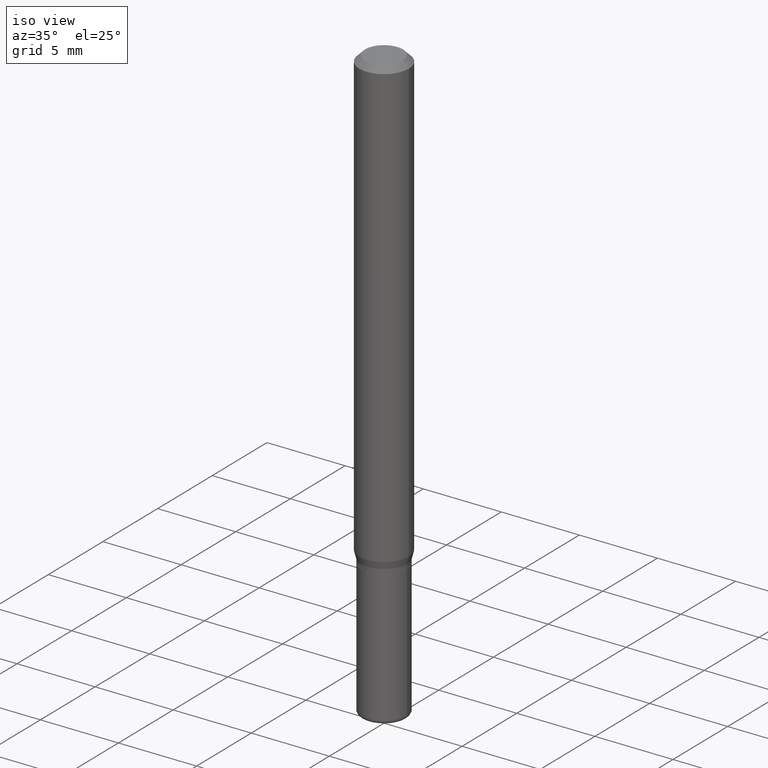
[diagram: clean part render]
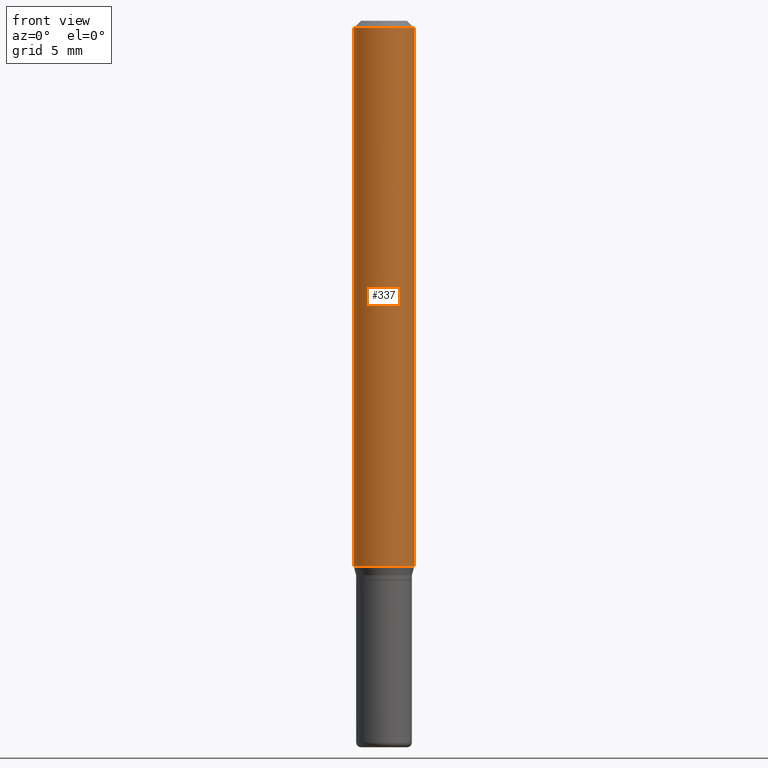
[diagram: tour spotlight — one face highlighted and labeled with its STEP entity id]
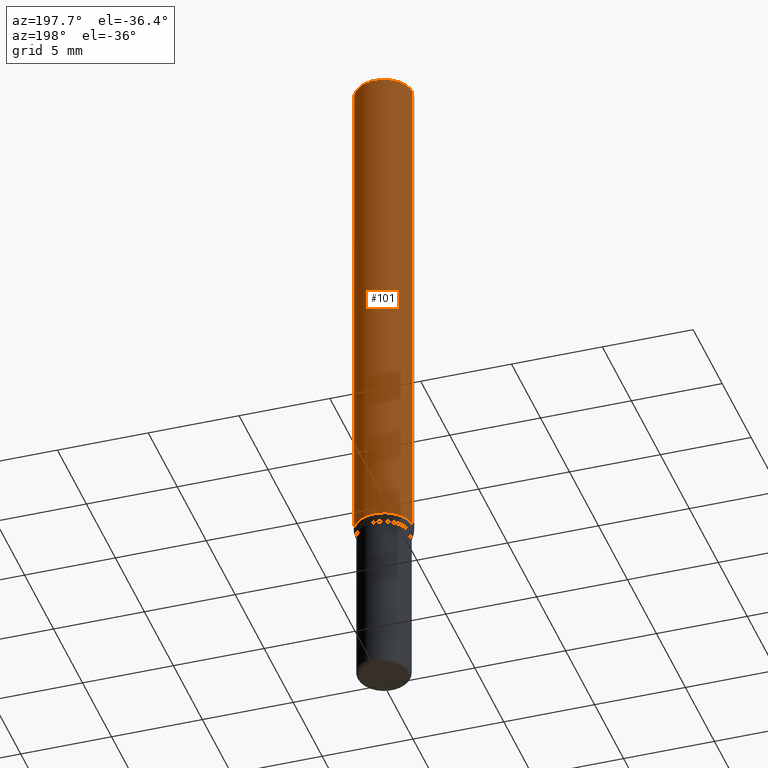
[diagram: tour spotlight — one face highlighted and labeled with its STEP entity id]
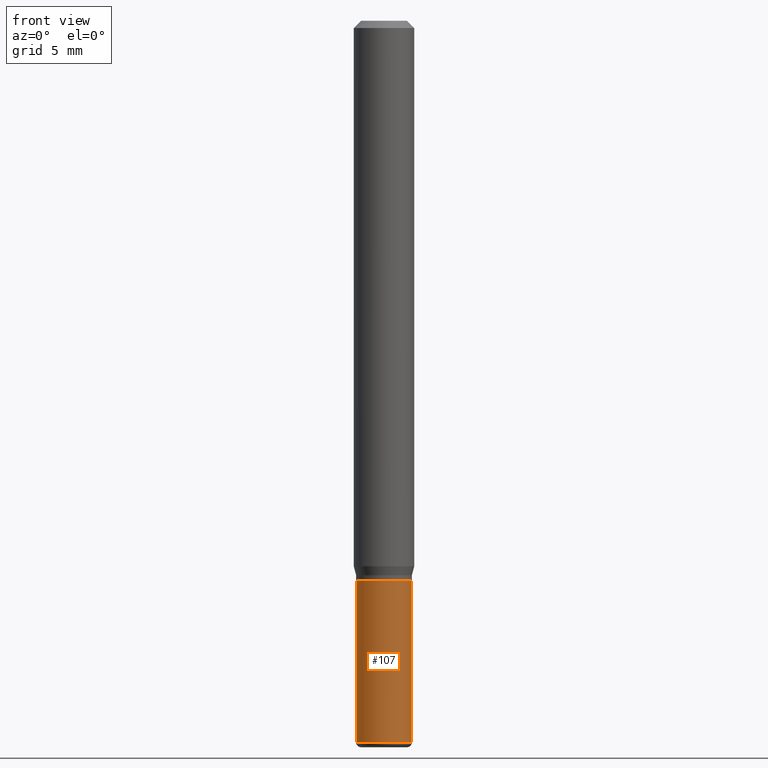
[diagram: tour spotlight — one face highlighted and labeled with its STEP entity id]
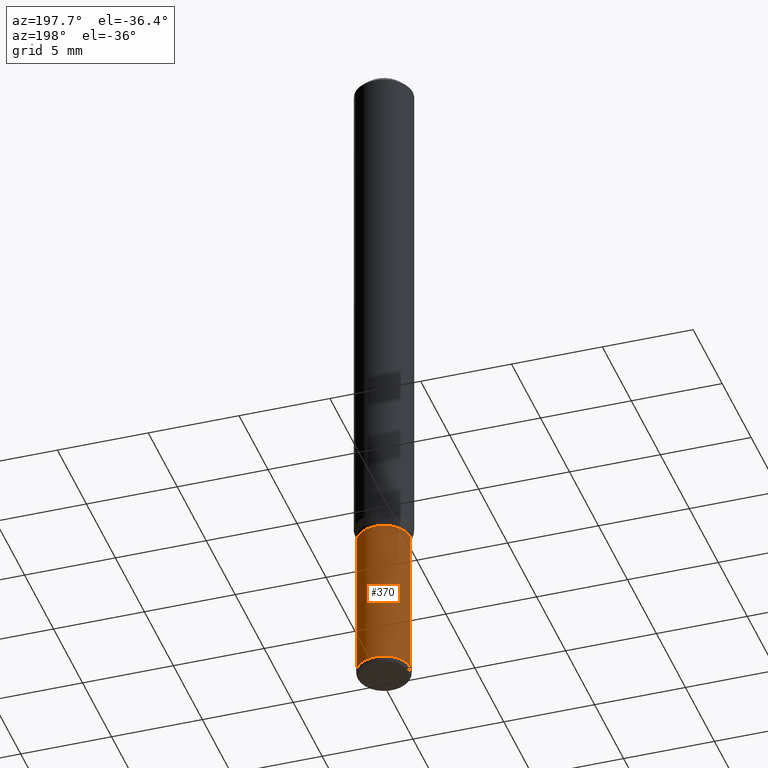
[diagram: tour spotlight — one face highlighted and labeled with its STEP entity id]
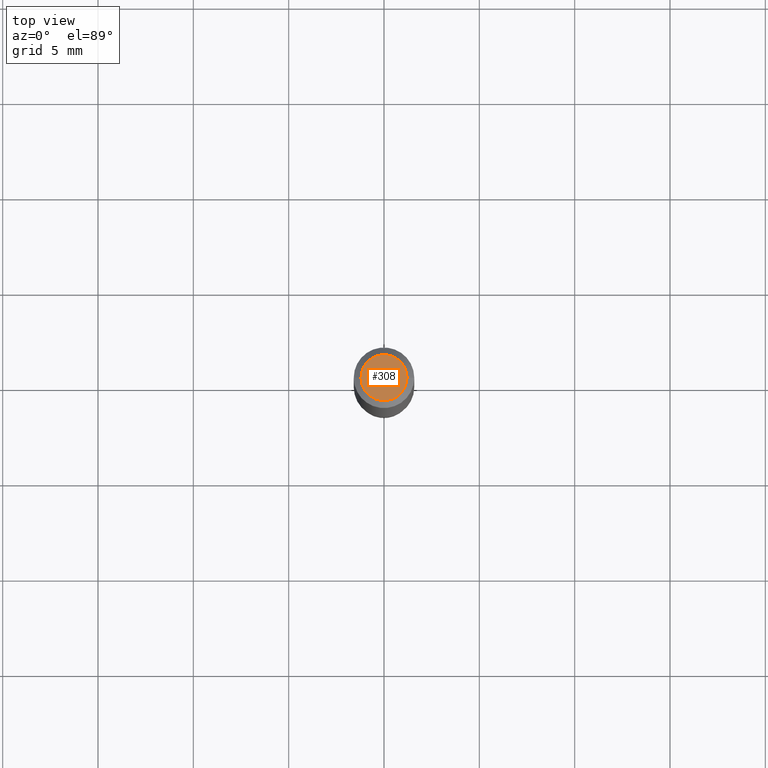
[diagram: tour spotlight — one face highlighted and labeled with its STEP entity id]
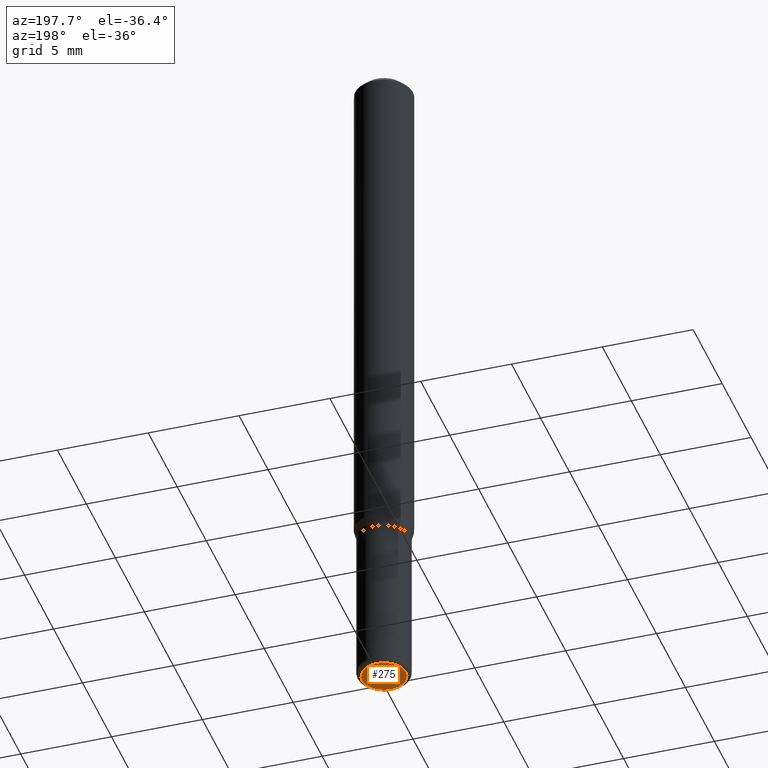
[diagram: tour spotlight — one face highlighted and labeled with its STEP entity id]
A machine part: a face-by-face anatomy tour. The part has 18 B-rep faces; the first image is the clean iso view, then the 6 largest visible faces are spotlighted one at a time (largest first), each with its STEP entity span.

Face 1 — front view, entity #337. In plain terms, the highlighted cylindrical surface (edge-blend (fillet) strip) has radius 1.5875 mm, axis along (-0, 0, 1).
Definition (entity closure, byte-faithful):
#4 = FACE_OUTER_BOUND ( 'NONE', #161, .T. ) ;
#42 = AXIS2_PLACEMENT_3D ( 'NONE', #278, #448, #81 ) ;
#65 = CIRCLE ( 'NONE', #42, 0.06250000000000000000 ) ;
#69 = CARTESIAN_POINT ( 'NONE',  ( 0.06250000000000000000, -4.888073874380378612E-16, -0.01499999999999970281 ) ) ;
#75 = VERTEX_POINT ( 'NONE', #501 ) ;
#81 = DIRECTION ( 'NONE',  ( 1.000000000000000000, -6.982962677686266711E-15, 0.000000000000000000 ) ) ;
#88 = VERTEX_POINT ( 'NONE', #69 ) ;
#90 = EDGE_CURVE ( 'NONE', #75, #321, #303, .T. ) ;
#92 = VECTOR ( 'NONE', #231, 39.37007874015748143 ) ;
#118 = DIRECTION ( 'NONE',  ( -2.445468806185136597E-29, 3.491481338843145583E-15, 1.000000000000000000 ) ) ;
#135 = ORIENTED_EDGE ( 'NONE', *, *, #90, .F. ) ;
#137 = ORIENTED_EDGE ( 'NONE', *, *, #343, .F. ) ;
#148 = CARTESIAN_POINT ( 'NONE',  ( -0.06250000000000000000, 4.440892098500626162E-16, -3.074334431409316114E-30 ) ) ;
#149 = CARTESIAN_POINT ( 'NONE',  ( 0.06250000000000000000, -4.364351673553916694E-16, 3.047610484872459871E-30 ) ) ;
#161 = EDGE_LOOP ( 'NONE', ( #135, #280, #299, #137 ) ) ;
#231 = DIRECTION ( 'NONE',  ( -2.445468806185136877E-29, 3.491481338843145188E-15, 1.000000000000000000 ) ) ;
#234 = AXIS2_PLACEMENT_3D ( 'NONE', #392, #268, #431 ) ;
#268 = DIRECTION ( 'NONE',  ( -2.445468806185136597E-29, 3.491481338843145583E-15, 1.000000000000000000 ) ) ;
#278 = CARTESIAN_POINT ( 'NONE',  ( 3.668203209277632395E-31, -5.237222008264614861E-17, -0.01499999999999970281 ) ) ;
#280 = ORIENTED_EDGE ( 'NONE', *, *, #464, .T. ) ;
#282 = DIRECTION ( 'NONE',  ( 1.000000000000000000, -6.982962677686266711E-15, 4.876176775795935793E-29 ) ) ;
#299 = ORIENTED_EDGE ( 'NONE', *, *, #442, .T. ) ;
#303 = LINE ( 'NONE', #148, #92 ) ;
#307 = LINE ( 'NONE', #149, #482 ) ;
#317 = CYLINDRICAL_SURFACE ( 'NONE', #373, 0.06250000000000000000 ) ;
#319 = VERTEX_POINT ( 'NONE', #323 ) ;
#321 = VERTEX_POINT ( 'NONE', #401 ) ;
#323 = CARTESIAN_POINT ( 'NONE',  ( 0.06250000000000000000, -4.369029371579586711E-15, -1.126339745962155581 ) ) ;
#337 = ADVANCED_FACE ( 'NONE', ( #4 ), #317, .T. ) ;
#343 = EDGE_CURVE ( 'NONE', #321, #88, #65, .T. ) ;
#373 = AXIS2_PLACEMENT_3D ( 'NONE', #480, #118, #282 ) ;
#392 = CARTESIAN_POINT ( 'NONE',  ( 2.754428713916942619E-29, -3.932594204224195830E-15, -1.126339745962155581 ) ) ;
#401 = CARTESIAN_POINT ( 'NONE',  ( -0.06250000000000000000, -1.548394002303358444E-15, -0.01499999999999970281 ) ) ;
#430 = CIRCLE ( 'NONE', #234, 0.06250000000000000000 ) ;
#431 = DIRECTION ( 'NONE',  ( 1.000000000000000000, -6.982962677686270655E-15, 0.000000000000000000 ) ) ;
#442 = EDGE_CURVE ( 'NONE', #319, #88, #307, .T. ) ;
#448 = DIRECTION ( 'NONE',  ( -2.445468806185136597E-29, 3.491481338843145583E-15, 1.000000000000000000 ) ) ;
#464 = EDGE_CURVE ( 'NONE', #75, #319, #430, .T. ) ;
#480 = CARTESIAN_POINT ( 'NONE',  ( 0.000000000000000000, 0.000000000000000000, 0.000000000000000000 ) ) ;
#482 = VECTOR ( 'NONE', #505, 39.37007874015748143 ) ;
#501 = CARTESIAN_POINT ( 'NONE',  ( -0.06250000000000000000, -3.488504994374132819E-15, -1.126339745962155581 ) ) ;
#505 = DIRECTION ( 'NONE',  ( -2.445468806185136877E-29, 3.491481338843145188E-15, 1.000000000000000000 ) ) ;

Face 2 — auxiliary view, entity #101. In plain terms, the highlighted cylindrical surface (edge-blend (fillet) strip) has radius 1.5875 mm, axis along (-0, 0, 1).
Definition (entity closure, byte-faithful):
#64 = EDGE_CURVE ( 'NONE', #319, #75, #403, .T. ) ;
#69 = CARTESIAN_POINT ( 'NONE',  ( 0.06250000000000000000, -4.888073874380378612E-16, -0.01499999999999970281 ) ) ;
#75 = VERTEX_POINT ( 'NONE', #501 ) ;
#88 = VERTEX_POINT ( 'NONE', #69 ) ;
#90 = EDGE_CURVE ( 'NONE', #75, #321, #303, .T. ) ;
#92 = VECTOR ( 'NONE', #231, 39.37007874015748143 ) ;
#101 = ADVANCED_FACE ( 'NONE', ( #271 ), #225, .T. ) ;
#117 = AXIS2_PLACEMENT_3D ( 'NONE', #326, #483, #279 ) ;
#148 = CARTESIAN_POINT ( 'NONE',  ( -0.06250000000000000000, 4.440892098500626162E-16, -3.074334431409316114E-30 ) ) ;
#149 = CARTESIAN_POINT ( 'NONE',  ( 0.06250000000000000000, -4.364351673553916694E-16, 3.047610484872459871E-30 ) ) ;
#185 = CARTESIAN_POINT ( 'NONE',  ( 0.000000000000000000, 0.000000000000000000, 0.000000000000000000 ) ) ;
#194 = DIRECTION ( 'NONE',  ( -2.445468806185136597E-29, 3.491481338843145583E-15, 1.000000000000000000 ) ) ;
#216 = ORIENTED_EDGE ( 'NONE', *, *, #442, .F. ) ;
#225 = CYLINDRICAL_SURFACE ( 'NONE', #242, 0.06250000000000000000 ) ;
#229 = DIRECTION ( 'NONE',  ( 1.000000000000000000, -6.982962677686266711E-15, 4.876176775795935793E-29 ) ) ;
#231 = DIRECTION ( 'NONE',  ( -2.445468806185136877E-29, 3.491481338843145188E-15, 1.000000000000000000 ) ) ;
#242 = AXIS2_PLACEMENT_3D ( 'NONE', #185, #342, #229 ) ;
#248 = EDGE_CURVE ( 'NONE', #88, #321, #450, .T. ) ;
#271 = FACE_OUTER_BOUND ( 'NONE', #359, .T. ) ;
#279 = DIRECTION ( 'NONE',  ( 1.000000000000000000, -6.982962677686266711E-15, 0.000000000000000000 ) ) ;
#303 = LINE ( 'NONE', #148, #92 ) ;
#307 = LINE ( 'NONE', #149, #482 ) ;
#311 = CARTESIAN_POINT ( 'NONE',  ( 2.754428713916942619E-29, -3.932594204224195830E-15, -1.126339745962155581 ) ) ;
#319 = VERTEX_POINT ( 'NONE', #323 ) ;
#321 = VERTEX_POINT ( 'NONE', #401 ) ;
#323 = CARTESIAN_POINT ( 'NONE',  ( 0.06250000000000000000, -4.369029371579586711E-15, -1.126339745962155581 ) ) ;
#326 = CARTESIAN_POINT ( 'NONE',  ( 3.668203209277632395E-31, -5.237222008264614861E-17, -0.01499999999999970281 ) ) ;
#330 = ORIENTED_EDGE ( 'NONE', *, *, #248, .F. ) ;
#342 = DIRECTION ( 'NONE',  ( -2.445468806185136597E-29, 3.491481338843145583E-15, 1.000000000000000000 ) ) ;
#359 = EDGE_LOOP ( 'NONE', ( #487, #490, #330, #216 ) ) ;
#401 = CARTESIAN_POINT ( 'NONE',  ( -0.06250000000000000000, -1.548394002303358444E-15, -0.01499999999999970281 ) ) ;
#403 = CIRCLE ( 'NONE', #495, 0.06250000000000000000 ) ;
#442 = EDGE_CURVE ( 'NONE', #319, #88, #307, .T. ) ;
#450 = CIRCLE ( 'NONE', #117, 0.06250000000000000000 ) ;
#482 = VECTOR ( 'NONE', #505, 39.37007874015748143 ) ;
#483 = DIRECTION ( 'NONE',  ( -2.445468806185136597E-29, 3.491481338843145583E-15, 1.000000000000000000 ) ) ;
#487 = ORIENTED_EDGE ( 'NONE', *, *, #64, .T. ) ;
#490 = ORIENTED_EDGE ( 'NONE', *, *, #90, .T. ) ;
#495 = AXIS2_PLACEMENT_3D ( 'NONE', #311, #194, #504 ) ;
#501 = CARTESIAN_POINT ( 'NONE',  ( -0.06250000000000000000, -3.488504994374132819E-15, -1.126339745962155581 ) ) ;
#504 = DIRECTION ( 'NONE',  ( 1.000000000000000000, -6.982962677686270655E-15, 0.000000000000000000 ) ) ;
#505 = DIRECTION ( 'NONE',  ( -2.445468806185136877E-29, 3.491481338843145188E-15, 1.000000000000000000 ) ) ;

Face 3 — front view, entity #107. In plain terms, the highlighted cylindrical surface (edge-blend (fillet) strip) has radius 1.4605 mm, axis along (-0, 0, 1).
Definition (entity closure, byte-faithful):
#9 = CARTESIAN_POINT ( 'NONE',  ( 0.05750000000000000250, -4.434181300330794192E-15, -1.155000000000000027 ) ) ;
#37 = DIRECTION ( 'NONE',  ( -2.445468806185136877E-29, 3.491481338843145188E-15, 1.000000000000000000 ) ) ;
#59 = CARTESIAN_POINT ( 'NONE',  ( 0.000000000000000000, 0.000000000000000000, 0.000000000000000000 ) ) ;
#63 = DIRECTION ( 'NONE',  ( 1.000000000000000000, -6.982962677686263555E-15, 0.000000000000000000 ) ) ;
#66 = CARTESIAN_POINT ( 'NONE',  ( 0.05749999999999994699, -5.603827548843247337E-15, -1.490000000000000213 ) ) ;
#68 = EDGE_CURVE ( 'NONE', #169, #79, #463, .T. ) ;
#79 = VERTEX_POINT ( 'NONE', #66 ) ;
#99 = CARTESIAN_POINT ( 'NONE',  ( -0.05750000000000000250, -4.208921997558003169E-15, -1.155000000000000027 ) ) ;
#104 = EDGE_CURVE ( 'NONE', #79, #416, #106, .T. ) ;
#106 = LINE ( 'NONE', #110, #481 ) ;
#107 = ADVANCED_FACE ( 'NONE', ( #306 ), #420, .T. ) ;
#110 = CARTESIAN_POINT ( 'NONE',  ( 0.05749999999999997474, -4.015203539669602175E-16, 2.803801646082662240E-30 ) ) ;
#120 = CARTESIAN_POINT ( 'NONE',  ( -0.05749999999999997474, 4.085620730620574274E-16, -2.828387676896569661E-30 ) ) ;
#124 = LINE ( 'NONE', #120, #295 ) ;
#150 = DIRECTION ( 'NONE',  ( -2.445468806185136877E-29, 3.491481338843145188E-15, 1.000000000000000000 ) ) ;
#155 = DIRECTION ( 'NONE',  ( -2.445468806185136597E-29, 3.491481338843145583E-15, 1.000000000000000000 ) ) ;
#169 = VERTEX_POINT ( 'NONE', #355 ) ;
#190 = AXIS2_PLACEMENT_3D ( 'NONE', #429, #300, #63 ) ;
#204 = ORIENTED_EDGE ( 'NONE', *, *, #68, .T. ) ;
#222 = DIRECTION ( 'NONE',  ( 1.000000000000000000, -6.982962677686267499E-15, 4.876176775795936353E-29 ) ) ;
#226 = AXIS2_PLACEMENT_3D ( 'NONE', #59, #389, #222 ) ;
#232 = CARTESIAN_POINT ( 'NONE',  ( 2.824516471143833307E-29, -4.032660946363833383E-15, -1.155000000000000027 ) ) ;
#236 = EDGE_CURVE ( 'NONE', #169, #485, #124, .T. ) ;
#255 = ORIENTED_EDGE ( 'NONE', *, *, #236, .F. ) ;
#258 = EDGE_CURVE ( 'NONE', #485, #416, #270, .T. ) ;
#260 = AXIS2_PLACEMENT_3D ( 'NONE', #232, #155, #484 ) ;
#270 = CIRCLE ( 'NONE', #260, 0.05750000000000000250 ) ;
#295 = VECTOR ( 'NONE', #37, 39.37007874015748143 ) ;
#300 = DIRECTION ( 'NONE',  ( -2.445468806185136597E-29, 3.491481338843145583E-15, 1.000000000000000000 ) ) ;
#306 = FACE_OUTER_BOUND ( 'NONE', #476, .T. ) ;
#355 = CARTESIAN_POINT ( 'NONE',  ( -0.05749999999999994699, -4.208921997558003169E-15, -1.490000000000000213 ) ) ;
#389 = DIRECTION ( 'NONE',  ( -2.445468806185136597E-29, 3.491481338843145583E-15, 1.000000000000000000 ) ) ;
#416 = VERTEX_POINT ( 'NONE', #9 ) ;
#420 = CYLINDRICAL_SURFACE ( 'NONE', #226, 0.05749999999999997474 ) ;
#429 = CARTESIAN_POINT ( 'NONE',  ( 3.643748521215853910E-29, -5.202307194876288105E-15, -1.490000000000000213 ) ) ;
#453 = ORIENTED_EDGE ( 'NONE', *, *, #104, .T. ) ;
#463 = CIRCLE ( 'NONE', #190, 0.05749999999999994699 ) ;
#476 = EDGE_LOOP ( 'NONE', ( #255, #204, #453, #479 ) ) ;
#479 = ORIENTED_EDGE ( 'NONE', *, *, #258, .F. ) ;
#481 = VECTOR ( 'NONE', #150, 39.37007874015748143 ) ;
#484 = DIRECTION ( 'NONE',  ( 1.000000000000000000, -6.982962677686273810E-15, 0.000000000000000000 ) ) ;
#485 = VERTEX_POINT ( 'NONE', #99 ) ;

Face 4 — auxiliary view, entity #370. In plain terms, the highlighted cylindrical surface (edge-blend (fillet) strip) has radius 1.4605 mm, axis along (-0, 0, 1).
Definition (entity closure, byte-faithful):
#7 = DIRECTION ( 'NONE',  ( 1.000000000000000000, -6.982962677686263555E-15, 0.000000000000000000 ) ) ;
#9 = CARTESIAN_POINT ( 'NONE',  ( 0.05750000000000000250, -4.434181300330794192E-15, -1.155000000000000027 ) ) ;
#37 = DIRECTION ( 'NONE',  ( -2.445468806185136877E-29, 3.491481338843145188E-15, 1.000000000000000000 ) ) ;
#55 = ORIENTED_EDGE ( 'NONE', *, *, #377, .T. ) ;
#57 = AXIS2_PLACEMENT_3D ( 'NONE', #407, #408, #7 ) ;
#66 = CARTESIAN_POINT ( 'NONE',  ( 0.05749999999999994699, -5.603827548843247337E-15, -1.490000000000000213 ) ) ;
#73 = AXIS2_PLACEMENT_3D ( 'NONE', #131, #87, #367 ) ;
#79 = VERTEX_POINT ( 'NONE', #66 ) ;
#87 = DIRECTION ( 'NONE',  ( -2.445468806185136597E-29, 3.491481338843145583E-15, 1.000000000000000000 ) ) ;
#99 = CARTESIAN_POINT ( 'NONE',  ( -0.05750000000000000250, -4.208921997558003169E-15, -1.155000000000000027 ) ) ;
#104 = EDGE_CURVE ( 'NONE', #79, #416, #106, .T. ) ;
#105 = DIRECTION ( 'NONE',  ( 1.000000000000000000, -6.982962677686273810E-15, 0.000000000000000000 ) ) ;
#106 = LINE ( 'NONE', #110, #481 ) ;
#110 = CARTESIAN_POINT ( 'NONE',  ( 0.05749999999999997474, -4.015203539669602175E-16, 2.803801646082662240E-30 ) ) ;
#120 = CARTESIAN_POINT ( 'NONE',  ( -0.05749999999999997474, 4.085620730620574274E-16, -2.828387676896569661E-30 ) ) ;
#121 = EDGE_CURVE ( 'NONE', #416, #485, #252, .T. ) ;
#124 = LINE ( 'NONE', #120, #295 ) ;
#131 = CARTESIAN_POINT ( 'NONE',  ( 0.000000000000000000, 0.000000000000000000, 0.000000000000000000 ) ) ;
#138 = AXIS2_PLACEMENT_3D ( 'NONE', #386, #388, #105 ) ;
#150 = DIRECTION ( 'NONE',  ( -2.445468806185136877E-29, 3.491481338843145188E-15, 1.000000000000000000 ) ) ;
#169 = VERTEX_POINT ( 'NONE', #355 ) ;
#174 = CYLINDRICAL_SURFACE ( 'NONE', #73, 0.05749999999999997474 ) ;
#200 = EDGE_LOOP ( 'NONE', ( #55, #315, #341, #446 ) ) ;
#236 = EDGE_CURVE ( 'NONE', #169, #485, #124, .T. ) ;
#252 = CIRCLE ( 'NONE', #138, 0.05750000000000000250 ) ;
#295 = VECTOR ( 'NONE', #37, 39.37007874015748143 ) ;
#304 = CIRCLE ( 'NONE', #57, 0.05749999999999994699 ) ;
#315 = ORIENTED_EDGE ( 'NONE', *, *, #236, .T. ) ;
#341 = ORIENTED_EDGE ( 'NONE', *, *, #121, .F. ) ;
#355 = CARTESIAN_POINT ( 'NONE',  ( -0.05749999999999994699, -4.208921997558003169E-15, -1.490000000000000213 ) ) ;
#365 = FACE_OUTER_BOUND ( 'NONE', #200, .T. ) ;
#367 = DIRECTION ( 'NONE',  ( 1.000000000000000000, -6.982962677686267499E-15, 4.876176775795936353E-29 ) ) ;
#370 = ADVANCED_FACE ( 'NONE', ( #365 ), #174, .T. ) ;
#377 = EDGE_CURVE ( 'NONE', #79, #169, #304, .T. ) ;
#386 = CARTESIAN_POINT ( 'NONE',  ( 2.824516471143833307E-29, -4.032660946363833383E-15, -1.155000000000000027 ) ) ;
#388 = DIRECTION ( 'NONE',  ( -2.445468806185136597E-29, 3.491481338843145583E-15, 1.000000000000000000 ) ) ;
#407 = CARTESIAN_POINT ( 'NONE',  ( 3.643748521215853910E-29, -5.202307194876288105E-15, -1.490000000000000213 ) ) ;
#408 = DIRECTION ( 'NONE',  ( -2.445468806185136597E-29, 3.491481338843145583E-15, 1.000000000000000000 ) ) ;
#416 = VERTEX_POINT ( 'NONE', #9 ) ;
#446 = ORIENTED_EDGE ( 'NONE', *, *, #104, .F. ) ;
#481 = VECTOR ( 'NONE', #150, 39.37007874015748143 ) ;
#485 = VERTEX_POINT ( 'NONE', #99 ) ;

Face 5 — top view, entity #308. In plain terms, the highlighted planar face has unit normal (0, -0, -1).
Definition (entity closure, byte-faithful):
#10 = ORIENTED_EDGE ( 'NONE', *, *, #460, .T. ) ;
#28 = DIRECTION ( 'NONE',  ( 1.000000000000000000, -6.982962677686266711E-15, 4.852736867747365086E-29 ) ) ;
#61 = CARTESIAN_POINT ( 'NONE',  ( -6.680649051745406845E-45, 9.538196290434862081E-31, 2.731847993664263218E-16 ) ) ;
#78 = CARTESIAN_POINT ( 'NONE',  ( -0.04750000000000000749, 3.578768372314221353E-16, 2.731847993664239060E-16 ) ) ;
#84 = EDGE_CURVE ( 'NONE', #518, #287, #339, .T. ) ;
#142 = DIRECTION ( 'NONE',  ( 1.000000000000000000, -6.982962677686266711E-15, 4.852736867747365086E-29 ) ) ;
#157 = DIRECTION ( 'NONE',  ( -1.000000000000000000, 6.982962677686265922E-15, -4.876176775795935793E-29 ) ) ;
#175 = CIRCLE ( 'NONE', #227, 0.04750000000000000749 ) ;
#193 = DIRECTION ( 'NONE',  ( -2.445468806185136597E-29, 3.491481338843145583E-15, 1.000000000000000000 ) ) ;
#227 = AXIS2_PLACEMENT_3D ( 'NONE', #61, #193, #142 ) ;
#237 = FACE_OUTER_BOUND ( 'NONE', #238, .T. ) ;
#238 = EDGE_LOOP ( 'NONE', ( #10, #324 ) ) ;
#287 = VERTEX_POINT ( 'NONE', #78 ) ;
#308 = ADVANCED_FACE ( 'NONE', ( #237 ), #361, .F. ) ;
#324 = ORIENTED_EDGE ( 'NONE', *, *, #84, .T. ) ;
#339 = CIRCLE ( 'NONE', #372, 0.04750000000000000749 ) ;
#361 = PLANE ( 'NONE',  #412 ) ;
#372 = AXIS2_PLACEMENT_3D ( 'NONE', #462, #472, #28 ) ;
#399 = DIRECTION ( 'NONE',  ( 2.438088387897960049E-29, -3.491481338843145188E-15, -1.000000000000000000 ) ) ;
#412 = AXIS2_PLACEMENT_3D ( 'NONE', #517, #399, #157 ) ;
#460 = EDGE_CURVE ( 'NONE', #287, #518, #175, .T. ) ;
#462 = CARTESIAN_POINT ( 'NONE',  ( -6.680649051745406845E-45, 9.538196290434862081E-31, 2.731847993664263218E-16 ) ) ;
#470 = CARTESIAN_POINT ( 'NONE',  ( 0.04750000000000000749, -4.035134999187568762E-16, 2.731847993664288856E-16 ) ) ;
#472 = DIRECTION ( 'NONE',  ( -2.445468806185136597E-29, 3.491481338843145583E-15, 1.000000000000000000 ) ) ;
#517 = CARTESIAN_POINT ( 'NONE',  ( 3.316907271900976589E-16, 0.04750000000000000749, -2.925296391183627249E-17 ) ) ;
#518 = VERTEX_POINT ( 'NONE', #470 ) ;

Face 6 — auxiliary view, entity #275. In plain terms, the highlighted planar face has unit normal (-0, 0, 1).
Definition (entity closure, byte-faithful):
#13 = AXIS2_PLACEMENT_3D ( 'NONE', #152, #168, #206 ) ;
#113 = VERTEX_POINT ( 'NONE', #391 ) ;
#119 = VERTEX_POINT ( 'NONE', #347 ) ;
#152 = CARTESIAN_POINT ( 'NONE',  ( 3.668203209277704895E-29, -5.237222008264718177E-15, -1.500000000000000222 ) ) ;
#158 = ORIENTED_EDGE ( 'NONE', *, *, #451, .F. ) ;
#163 = EDGE_CURVE ( 'NONE', #113, #119, #243, .T. ) ;
#168 = DIRECTION ( 'NONE',  ( -2.445468806185136597E-29, 3.491481338843145583E-15, 1.000000000000000000 ) ) ;
#196 = DIRECTION ( 'NONE',  ( -2.438088387897960049E-29, 3.491481338843145188E-15, 1.000000000000000000 ) ) ;
#201 = FACE_OUTER_BOUND ( 'NONE', #253, .T. ) ;
#206 = DIRECTION ( 'NONE',  ( 1.000000000000000000, -6.982962677686260400E-15, 0.000000000000000000 ) ) ;
#243 = CIRCLE ( 'NONE', #13, 0.04750000000000000749 ) ;
#253 = EDGE_LOOP ( 'NONE', ( #158, #395 ) ) ;
#273 = CARTESIAN_POINT ( 'NONE',  ( 3.582686580359766038E-29, -5.359686688179453325E-15, -1.500000000000000222 ) ) ;
#275 = ADVANCED_FACE ( 'NONE', ( #201 ), #397, .F. ) ;
#301 = CARTESIAN_POINT ( 'NONE',  ( 3.668203209277704895E-29, -5.237222008264718177E-15, -1.500000000000000222 ) ) ;
#320 = DIRECTION ( 'NONE',  ( 1.000000000000000000, -6.982962677686265922E-15, 4.876176775795935793E-29 ) ) ;
#347 = CARTESIAN_POINT ( 'NONE',  ( 0.04750000000000000749, -5.568912735454815688E-15, -1.500000000000000222 ) ) ;
#381 = AXIS2_PLACEMENT_3D ( 'NONE', #301, #502, #509 ) ;
#391 = CARTESIAN_POINT ( 'NONE',  ( -0.04750000000000000749, -4.846729665296451395E-15, -1.500000000000000222 ) ) ;
#395 = ORIENTED_EDGE ( 'NONE', *, *, #163, .F. ) ;
#396 = CIRCLE ( 'NONE', #381, 0.04750000000000000749 ) ;
#397 = PLANE ( 'NONE',  #440 ) ;
#440 = AXIS2_PLACEMENT_3D ( 'NONE', #273, #196, #320 ) ;
#451 = EDGE_CURVE ( 'NONE', #119, #113, #396, .T. ) ;
#502 = DIRECTION ( 'NONE',  ( -2.445468806185136597E-29, 3.491481338843145583E-15, 1.000000000000000000 ) ) ;
#509 = DIRECTION ( 'NONE',  ( 1.000000000000000000, -6.982962677686260400E-15, 0.000000000000000000 ) ) ;